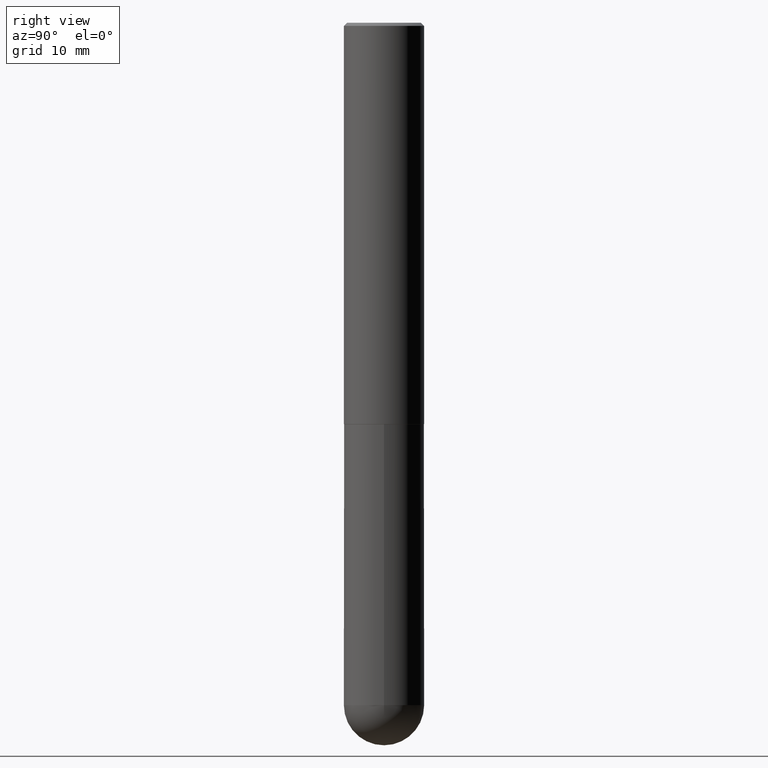
[diagram: clean part render]
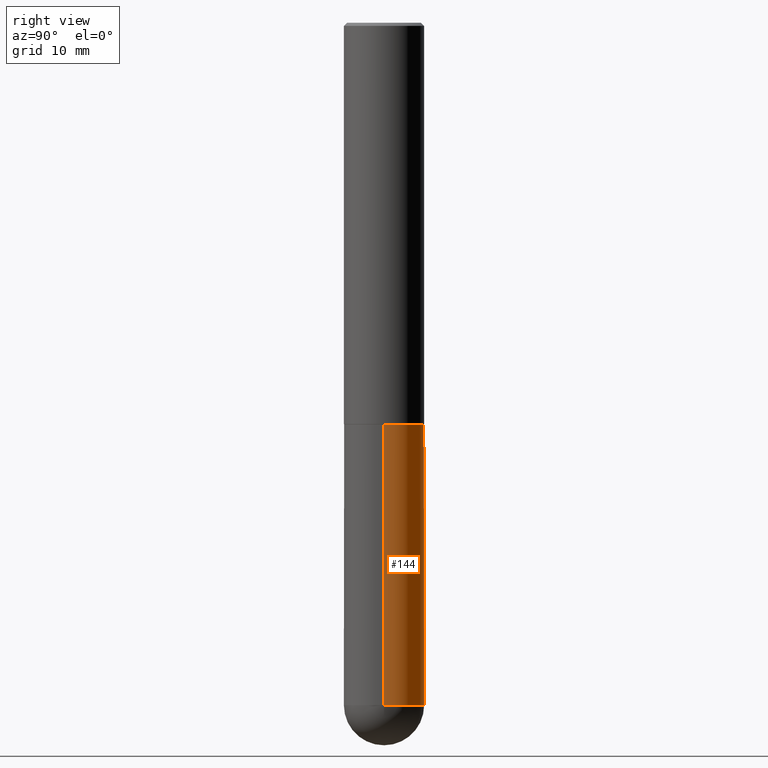
[diagram: same view with one face highlighted and labeled with its STEP entity id]
A machine part, right view. The second image highlights one B-rep face of the part: STEP entity #144.
In plain terms, the highlighted cylindrical surface (partial cylindrical patch) has radius 6.35 mm, axis along (-0, 0, 1).
Its self-contained STEP definition (entity closure, byte-faithful):
#15 = LINE ( 'NONE', #148, #128 ) ;
#18 = DIRECTION ( 'NONE',  ( 1.000000000000000000, -6.982962677686270655E-15, 0.000000000000000000 ) ) ;
#21 = AXIS2_PLACEMENT_3D ( 'NONE', #211, #367, #18 ) ;
#36 = DIRECTION ( 'NONE',  ( -2.445468806185136597E-29, 3.491481338843145583E-15, 1.000000000000000000 ) ) ;
#43 = ORIENTED_EDGE ( 'NONE', *, *, #304, .T. ) ;
#57 = CARTESIAN_POINT ( 'NONE',  ( 1.745740669421669032E-15, 0.2499999999999849842, -4.250000000000001776 ) ) ;
#63 = ORIENTED_EDGE ( 'NONE', *, *, #404, .F. ) ;
#96 = DIRECTION ( 'NONE',  ( 1.000000000000000000, -6.982962677686270655E-15, 0.000000000000000000 ) ) ;
#99 = LINE ( 'NONE', #222, #111 ) ;
#102 = DIRECTION ( 'NONE',  ( -2.445468806185136597E-29, 3.491481338843145583E-15, 1.000000000000000000 ) ) ;
#103 = CARTESIAN_POINT ( 'NONE',  ( 0.2500000000000000000, -1.047444401652943162E-14, -2.500000000000000000 ) ) ;
#105 = AXIS2_PLACEMENT_3D ( 'NONE', #258, #36, #236 ) ;
#108 = VERTEX_POINT ( 'NONE', #103 ) ;
#111 = VECTOR ( 'NONE', #408, 39.37007874015748143 ) ;
#114 = CARTESIAN_POINT ( 'NONE',  ( -0.2500000000000000000, -1.000739267919536563E-14, -2.500000000000000000 ) ) ;
#117 = CARTESIAN_POINT ( 'NONE',  ( -0.2500000000000000000, -1.000739267919536879E-14, -4.250000000000000000 ) ) ;
#128 = VECTOR ( 'NONE', #366, 39.37007874015748143 ) ;
#144 = ADVANCED_FACE ( 'NONE', ( #387 ), #354, .T. ) ;
#148 = CARTESIAN_POINT ( 'NONE',  ( -0.2500000000000000000, 1.776356839400250465E-15, -1.229733772563726445E-29 ) ) ;
#149 = AXIS2_PLACEMENT_3D ( 'NONE', #380, #374, #339 ) ;
#176 = AXIS2_PLACEMENT_3D ( 'NONE', #191, #102, #96 ) ;
#191 = CARTESIAN_POINT ( 'NONE',  ( 1.039324242628683054E-28, -1.483879569008337040E-14, -4.250000000000000000 ) ) ;
#194 = VERTEX_POINT ( 'NONE', #114 ) ;
#211 = CARTESIAN_POINT ( 'NONE',  ( 1.039324242628683054E-28, -1.483879569008337040E-14, -4.250000000000000000 ) ) ;
#222 = CARTESIAN_POINT ( 'NONE',  ( 0.2500000000000000000, -1.745740669421566678E-15, 1.219044193948983948E-29 ) ) ;
#236 = DIRECTION ( 'NONE',  ( 1.000000000000000000, -6.982962677686266711E-15, 4.876176775795935793E-29 ) ) ;
#240 = EDGE_CURVE ( 'NONE', #405, #255, #243, .T. ) ;
#243 = CIRCLE ( 'NONE', #21, 0.2500000000000000000 ) ;
#249 = ORIENTED_EDGE ( 'NONE', *, *, #240, .T. ) ;
#255 = VERTEX_POINT ( 'NONE', #117 ) ;
#258 = CARTESIAN_POINT ( 'NONE',  ( 0.000000000000000000, 0.000000000000000000, 0.000000000000000000 ) ) ;
#285 = CIRCLE ( 'NONE', #149, 0.2500000000000000000 ) ;
#304 = EDGE_CURVE ( 'NONE', #255, #194, #15, .T. ) ;
#311 = ORIENTED_EDGE ( 'NONE', *, *, #373, .T. ) ;
#339 = DIRECTION ( 'NONE',  ( 1.000000000000000000, -6.982962677686266711E-15, 0.000000000000000000 ) ) ;
#354 = CYLINDRICAL_SURFACE ( 'NONE', #105, 0.2500000000000000000 ) ;
#358 = CIRCLE ( 'NONE', #176, 0.2500000000000000000 ) ;
#360 = EDGE_LOOP ( 'NONE', ( #249, #43, #382, #63, #311 ) ) ;
#362 = EDGE_CURVE ( 'NONE', #108, #194, #285, .T. ) ;
#366 = DIRECTION ( 'NONE',  ( -2.445468806185136877E-29, 3.491481338843145188E-15, 1.000000000000000000 ) ) ;
#367 = DIRECTION ( 'NONE',  ( -2.445468806185136597E-29, 3.491481338843145583E-15, 1.000000000000000000 ) ) ;
#371 = CARTESIAN_POINT ( 'NONE',  ( 0.2500000000000000000, -1.352949018801718751E-14, -4.250000000000000000 ) ) ;
#373 = EDGE_CURVE ( 'NONE', #412, #405, #358, .T. ) ;
#374 = DIRECTION ( 'NONE',  ( -2.445468806185136597E-29, 3.491481338843145583E-15, 1.000000000000000000 ) ) ;
#380 = CARTESIAN_POINT ( 'NONE',  ( 6.113672015462842613E-29, -8.728703347107864943E-15, -2.500000000000000000 ) ) ;
#382 = ORIENTED_EDGE ( 'NONE', *, *, #362, .F. ) ;
#387 = FACE_OUTER_BOUND ( 'NONE', #360, .T. ) ;
#404 = EDGE_CURVE ( 'NONE', #412, #108, #99, .T. ) ;
#405 = VERTEX_POINT ( 'NONE', #57 ) ;
#408 = DIRECTION ( 'NONE',  ( -2.445468806185136877E-29, 3.491481338843145188E-15, 1.000000000000000000 ) ) ;
#412 = VERTEX_POINT ( 'NONE', #371 ) ;